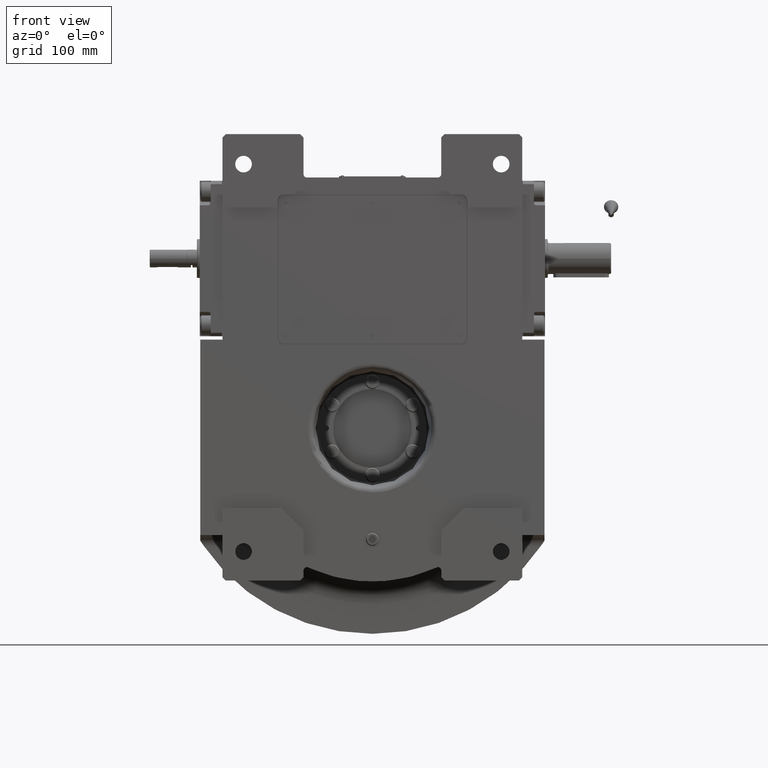
[diagram: clean part render]
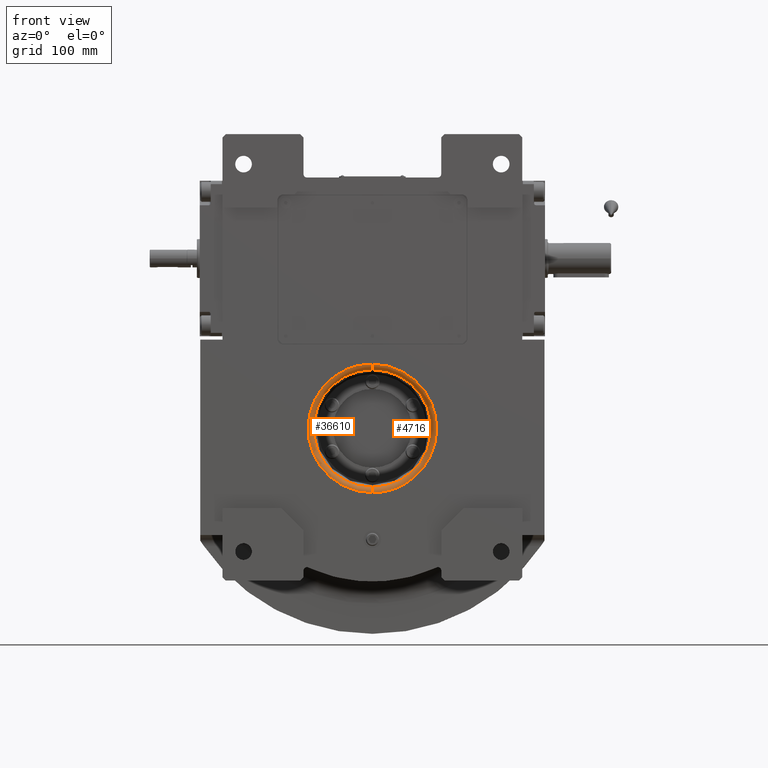
[diagram: same view with one multi-face feature highlighted, each face labeled with its STEP entity id]
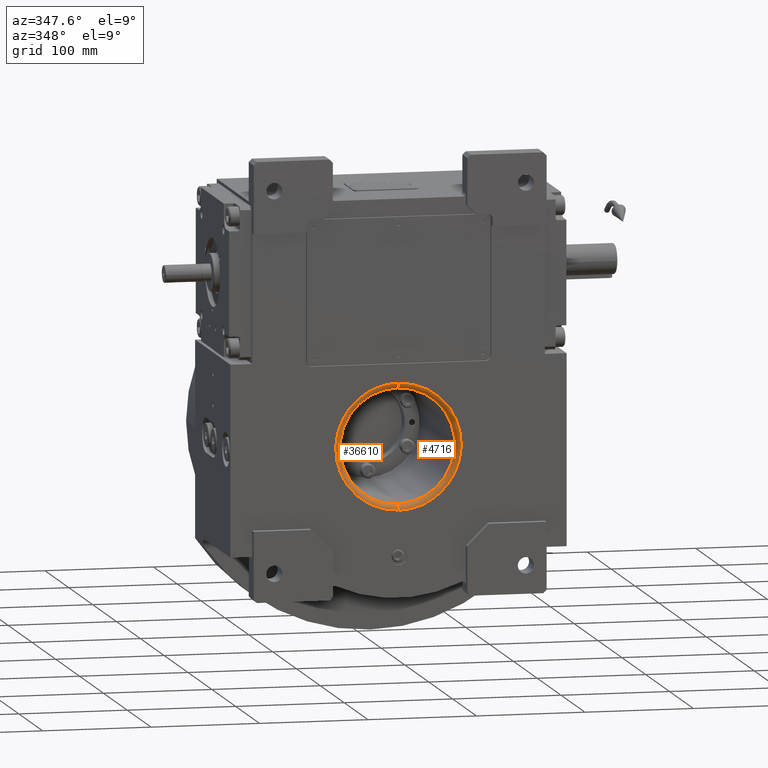
[diagram: same view with one multi-face feature highlighted, each face labeled with its STEP entity id]
A machine part, front view. The highlighted faces form ONE feature: a constant-radius fillet chain: 2 tangent blend faces with common blend radius 5 mm. The faces share edges in the B-rep.
A second angle (auxiliary view) of the same feature is appended — it is thin or edge-on in the first view.
Their STEP definitions:
[1] entity #36610 (Torus):
#115 = ORIENTED_EDGE ( 'NONE', *, *, #26405, .F. ) ;
#924 = CARTESIAN_POINT ( 'NONE',  ( 0.000000000000000000, -68.00000000000000000, 2.626597011442929886E-14 ) ) ;
#3899 = CARTESIAN_POINT ( 'NONE',  ( 1.116299612869330063E-12, -73.00000000000000000, -57.88848986029439914 ) ) ;
#5619 = AXIS2_PLACEMENT_3D ( 'NONE', #48244, #63910, #53136 ) ;
#5769 = EDGE_LOOP ( 'NONE', ( #22683, #48198, #18037, #115 ) ) ;
#6207 = VERTEX_POINT ( 'NONE', #6442 ) ;
#6442 = CARTESIAN_POINT ( 'NONE',  ( -3.366447261396295104E-11, -68.11275327462200835, 52.88976135205919604 ) ) ;
#8502 = DIRECTION ( 'NONE',  ( -2.334229079671812977E-11, -1.000000000000000000, 1.093569679255778183E-12 ) ) ;
#9453 = EDGE_CURVE ( 'NONE', #58677, #6207, #15612, .T. ) ;
#15612 = CIRCLE ( 'NONE', #5619, 52.88976140256119152 ) ;
#16087 = VERTEX_POINT ( 'NONE', #21682 ) ;
#16322 = DIRECTION ( 'NONE',  ( 0.02407689559208889621, -2.392540785118227540E-35, -0.9997101095310817476 ) ) ;
#16349 = CARTESIAN_POINT ( 'NONE',  ( -1.115322681495329805E-12, -73.00000000000000000, 57.88848986029439914 ) ) ;
#16456 =( BOUNDED_CURVE ( )  B_SPLINE_CURVE ( 3, ( #57447, #26432, #53624, #16349 ),
 .UNSPECIFIED., .F., .F. ) 
 B_SPLINE_CURVE_WITH_KNOTS ( ( 4, 4 ),
 ( 1.417576403733056045, 4.559165537837738036 ),
 .UNSPECIFIED. ) 
 CURVE ( )  GEOMETRIC_REPRESENTATION_ITEM ( )  RATIONAL_B_SPLINE_CURVE ( ( 1.000000000000000000, 0.3333345064950371528, 0.3333345064950371528, 1.000000000000000000 ) ) 
 REPRESENTATION_ITEM ( '' )  );
#18037 = ORIENTED_EDGE ( 'NONE', *, *, #50336, .F. ) ;
#20611 = CIRCLE ( 'NONE', #67357, 5.000000000000004441 ) ;
#21682 = CARTESIAN_POINT ( 'NONE',  ( -1.115322681495329805E-12, -73.00000000000000000, 57.88848986029439914 ) ) ;
#22683 = ORIENTED_EDGE ( 'NONE', *, *, #59645, .T. ) ;
#24769 = DIRECTION ( 'NONE',  ( 1.000000000000000000, 2.334134032802589874E-11, -3.443100538103175062E-12 ) ) ;
#26405 = EDGE_CURVE ( 'NONE', #55550, #16087, #16456, .T. ) ;
#26432 = CARTESIAN_POINT ( 'NONE',  ( -115.7767661625559867, -73.00000000000000000, -57.88822476622628699 ) ) ;
#33361 = AXIS2_PLACEMENT_3D ( 'NONE', #50569, #24769, #44636 ) ;
#33502 = FACE_OUTER_BOUND ( 'NONE', #5769, .T. ) ;
#35693 = DIRECTION ( 'NONE',  ( -1.000000000000000000, 2.334229079672190055E-11, 3.440570546148015035E-12 ) ) ;
#36610 = ADVANCED_FACE ( 'NONE', ( #33502 ), #65202, .T. ) ;
#37322 = CARTESIAN_POINT ( 'NONE',  ( 3.366158563859759886E-11, -68.11275327462200835, -52.88976135205919604 ) ) ;
#44636 = DIRECTION ( 'NONE',  ( 2.334134032802207626E-11, -1.000000000000000000, -1.099120794378903965E-12 ) ) ;
#45781 = CARTESIAN_POINT ( 'NONE',  ( 1.200603528221986005E-10, -68.00000000000000000, -57.88848986029619681 ) ) ;
#47802 = CIRCLE ( 'NONE', #33361, 5.000000000000004441 ) ;
#48198 = ORIENTED_EDGE ( 'NONE', *, *, #9453, .T. ) ;
#48244 = CARTESIAN_POINT ( 'NONE',  ( 5.180066373969149615E-08, -68.11275406274060629, 4.736386318413870025E-15 ) ) ;
#50336 = EDGE_CURVE ( 'NONE', #16087, #6207, #47802, .T. ) ;
#50569 = CARTESIAN_POINT ( 'NONE',  ( -1.200526696845962053E-10, -68.00000000000000000, 57.88848986029630339 ) ) ;
#53136 = DIRECTION ( 'NONE',  ( 0.9882587347805640299, -2.055886669902873894E-08, -0.1527896368538074756 ) ) ;
#53624 = CARTESIAN_POINT ( 'NONE',  ( -115.7767661625582463, -73.00000000000000000, 57.88834748044401834 ) ) ;
#55550 = VERTEX_POINT ( 'NONE', #3899 ) ;
#57447 = CARTESIAN_POINT ( 'NONE',  ( 1.116299612869330063E-12, -73.00000000000000000, -57.88848986029439914 ) ) ;
#58677 = VERTEX_POINT ( 'NONE', #37322 ) ;
#58795 = DIRECTION ( 'NONE',  ( 4.421425797491959834E-18, -1.000000000000000000, 1.064850763030846077E-19 ) ) ;
#59645 = EDGE_CURVE ( 'NONE', #55550, #58677, #20611, .T. ) ;
#59653 = AXIS2_PLACEMENT_3D ( 'NONE', #924, #58795, #16322 ) ;
#63910 = DIRECTION ( 'NONE',  ( 2.310691404686464099E-08, 0.9999999999999997780, 1.490116125507999888E-08 ) ) ;
#65202 = TOROIDAL_SURFACE ( 'NONE', #59653, 57.88848986029619681, 5.000000000000000000 ) ;
#67357 = AXIS2_PLACEMENT_3D ( 'NONE', #45781, #35693, #8502 ) ;
[2] entity #4716 (Torus):
#107 = DIRECTION ( 'NONE',  ( 0.9882587857891660388, 2.055887273401757417E-08, -0.1527893069246760438 ) ) ;
#2407 = EDGE_CURVE ( 'NONE', #6207, #58677, #59387, .T. ) ;
#3899 = CARTESIAN_POINT ( 'NONE',  ( 1.116299612869330063E-12, -73.00000000000000000, -57.88848986029439914 ) ) ;
#4525 = CARTESIAN_POINT ( 'NONE',  ( -1.115322681495329805E-12, -73.00000000000000000, 57.88848986029439914 ) ) ;
#4716 = ADVANCED_FACE ( 'NONE', ( #51765 ), #22530, .T. ) ;
#6207 = VERTEX_POINT ( 'NONE', #6442 ) ;
#6442 = CARTESIAN_POINT ( 'NONE',  ( -3.366447261396295104E-11, -68.11275327462200835, 52.88976135205919604 ) ) ;
#8502 = DIRECTION ( 'NONE',  ( -2.334229079671812977E-11, -1.000000000000000000, 1.093569679255778183E-12 ) ) ;
#9250 = CARTESIAN_POINT ( 'NONE',  ( 0.000000000000000000, -68.00000000000000000, 2.626597011442929886E-14 ) ) ;
#12449 = ORIENTED_EDGE ( 'NONE', *, *, #59645, .F. ) ;
#13523 = ORIENTED_EDGE ( 'NONE', *, *, #47585, .F. ) ;
#15984 = AXIS2_PLACEMENT_3D ( 'NONE', #37771, #60047, #107 ) ;
#16087 = VERTEX_POINT ( 'NONE', #21682 ) ;
#18288 = EDGE_LOOP ( 'NONE', ( #45994, #65747, #12449, #13523 ) ) ;
#20611 = CIRCLE ( 'NONE', #67357, 5.000000000000004441 ) ;
#21682 = CARTESIAN_POINT ( 'NONE',  ( -1.115322681495329805E-12, -73.00000000000000000, 57.88848986029439914 ) ) ;
#22530 = TOROIDAL_SURFACE ( 'NONE', #48106, 57.88848986029619681, 5.000000000000000000 ) ;
#24506 =( BOUNDED_CURVE ( )  B_SPLINE_CURVE ( 3, ( #4525, #46029, #68291, #67946 ),
 .UNSPECIFIED., .F., .F. ) 
 B_SPLINE_CURVE_WITH_KNOTS ( ( 4, 4 ),
 ( 4.559169057132199221, 7.700758191236885430 ),
 .UNSPECIFIED. ) 
 CURVE ( )  GEOMETRIC_REPRESENTATION_ITEM ( )  RATIONAL_B_SPLINE_CURVE ( ( 1.000000000000000000, 0.3333345064950357095, 0.3333345064950357095, 1.000000000000000000 ) ) 
 REPRESENTATION_ITEM ( '' )  );
#24769 = DIRECTION ( 'NONE',  ( 1.000000000000000000, 2.334134032802589874E-11, -3.443100538103175062E-12 ) ) ;
#33361 = AXIS2_PLACEMENT_3D ( 'NONE', #50569, #24769, #44636 ) ;
#35693 = DIRECTION ( 'NONE',  ( -1.000000000000000000, 2.334229079672190055E-11, 3.440570546148015035E-12 ) ) ;
#36101 = DIRECTION ( 'NONE',  ( -0.02407689559208884764, -5.981351962795569250E-35, 0.9997101095310817476 ) ) ;
#37322 = CARTESIAN_POINT ( 'NONE',  ( 3.366158563859759886E-11, -68.11275327462200835, -52.88976135205919604 ) ) ;
#37771 = CARTESIAN_POINT ( 'NONE',  ( -5.180071170158429987E-08, -68.11275406274060629, 3.434346457190809174E-14 ) ) ;
#41302 = DIRECTION ( 'NONE',  ( 4.421425797491955212E-18, -1.000000000000000000, 1.064850763030841984E-19 ) ) ;
#44636 = DIRECTION ( 'NONE',  ( 2.334134032802207626E-11, -1.000000000000000000, -1.099120794378903965E-12 ) ) ;
#45781 = CARTESIAN_POINT ( 'NONE',  ( 1.200603528221986005E-10, -68.00000000000000000, -57.88848986029619681 ) ) ;
#45994 = ORIENTED_EDGE ( 'NONE', *, *, #50336, .T. ) ;
#46029 = CARTESIAN_POINT ( 'NONE',  ( 115.7767661625561999, -73.00000000000000000, 57.88822476622656410 ) ) ;
#47585 = EDGE_CURVE ( 'NONE', #16087, #55550, #24506, .T. ) ;
#47802 = CIRCLE ( 'NONE', #33361, 5.000000000000004441 ) ;
#48106 = AXIS2_PLACEMENT_3D ( 'NONE', #9250, #41302, #36101 ) ;
#50336 = EDGE_CURVE ( 'NONE', #16087, #6207, #47802, .T. ) ;
#50569 = CARTESIAN_POINT ( 'NONE',  ( -1.200526696845962053E-10, -68.00000000000000000, 57.88848986029630339 ) ) ;
#51765 = FACE_OUTER_BOUND ( 'NONE', #18288, .T. ) ;
#55550 = VERTEX_POINT ( 'NONE', #3899 ) ;
#58677 = VERTEX_POINT ( 'NONE', #37322 ) ;
#59387 = CIRCLE ( 'NONE', #15984, 52.88976140256119152 ) ;
#59645 = EDGE_CURVE ( 'NONE', #55550, #58677, #20611, .T. ) ;
#60047 = DIRECTION ( 'NONE',  ( -2.310691404686089221E-08, 0.9999999999999997780, -1.490116125507999888E-08 ) ) ;
#65747 = ORIENTED_EDGE ( 'NONE', *, *, #2407, .T. ) ;
#67357 = AXIS2_PLACEMENT_3D ( 'NONE', #45781, #35693, #8502 ) ;
#67946 = CARTESIAN_POINT ( 'NONE',  ( 1.116299612869330063E-12, -73.00000000000000000, -57.88848986029439914 ) ) ;
#68291 = CARTESIAN_POINT ( 'NONE',  ( 115.7767661625584452, -73.00000000000000000, -57.88834748044417466 ) ) ;